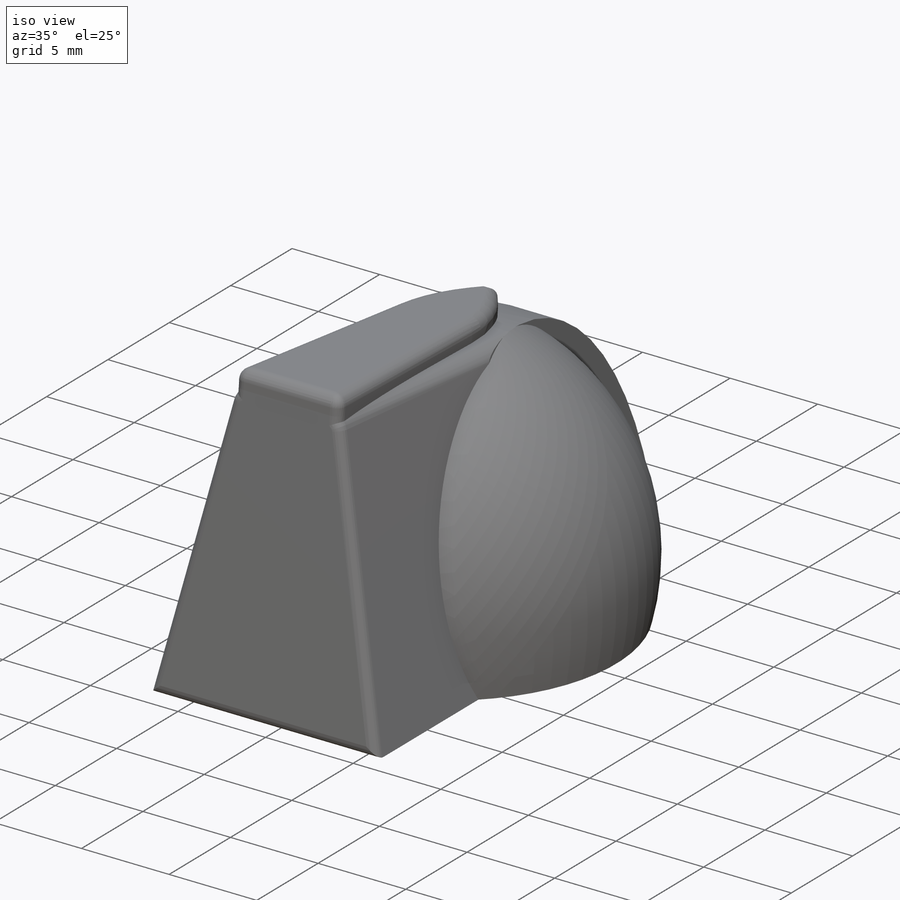
[diagram: iso view]
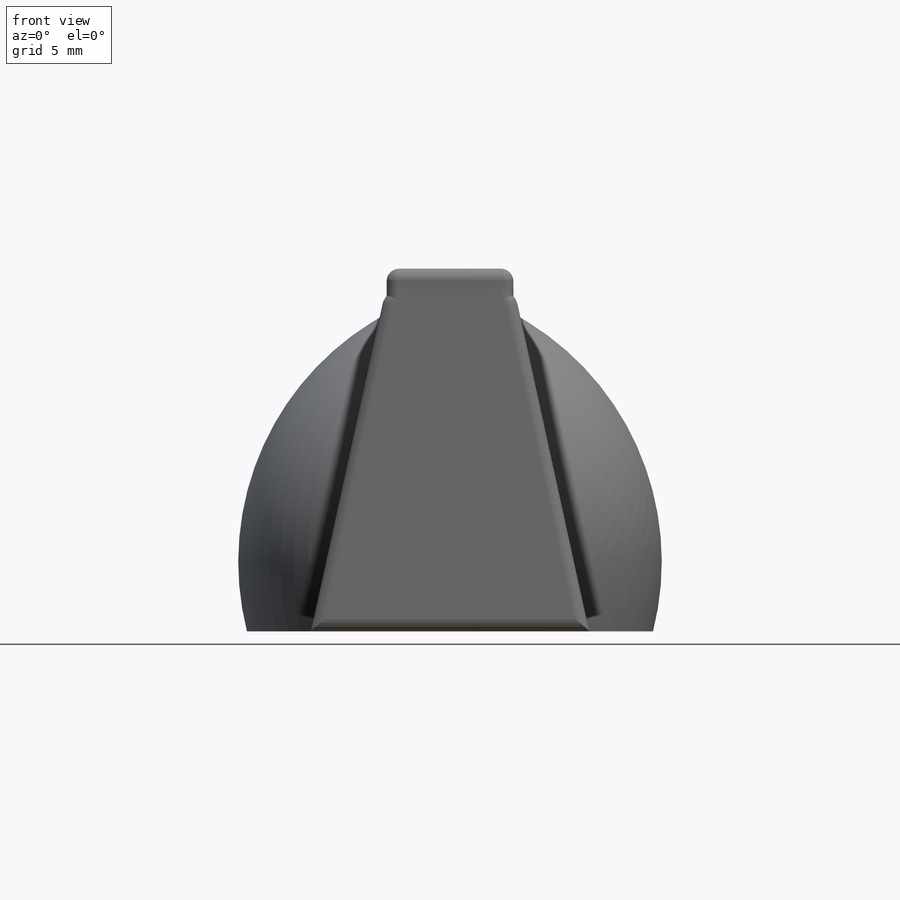
[diagram: front view]
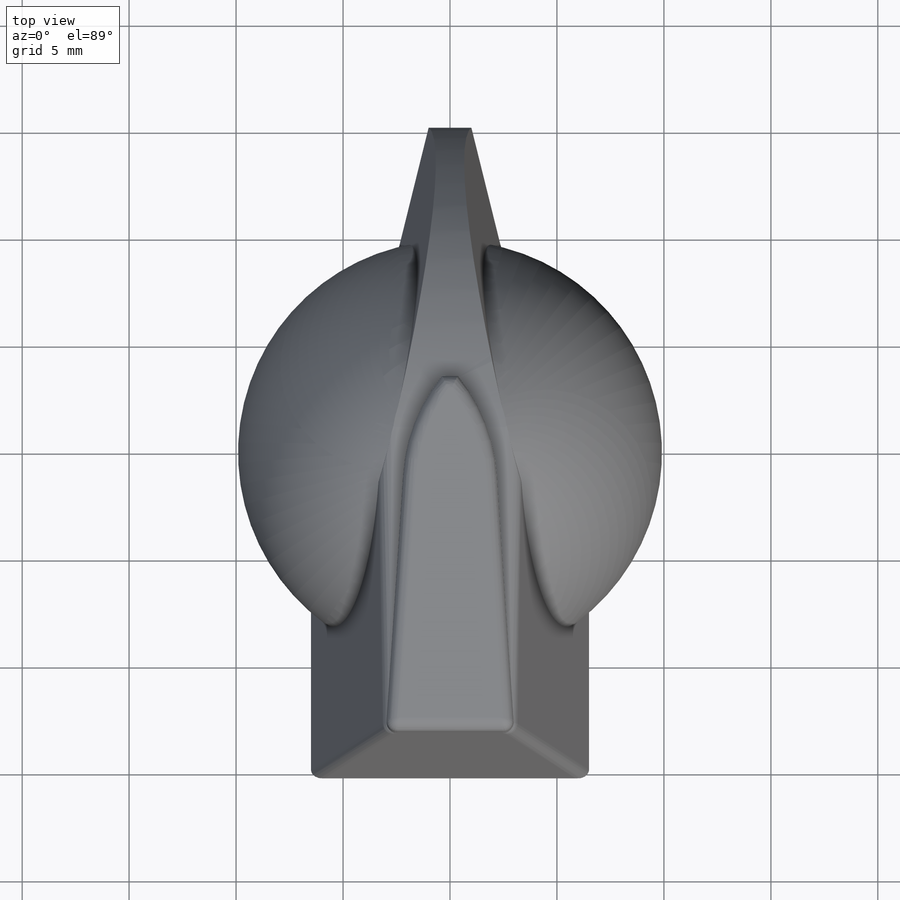
[diagram: top view]
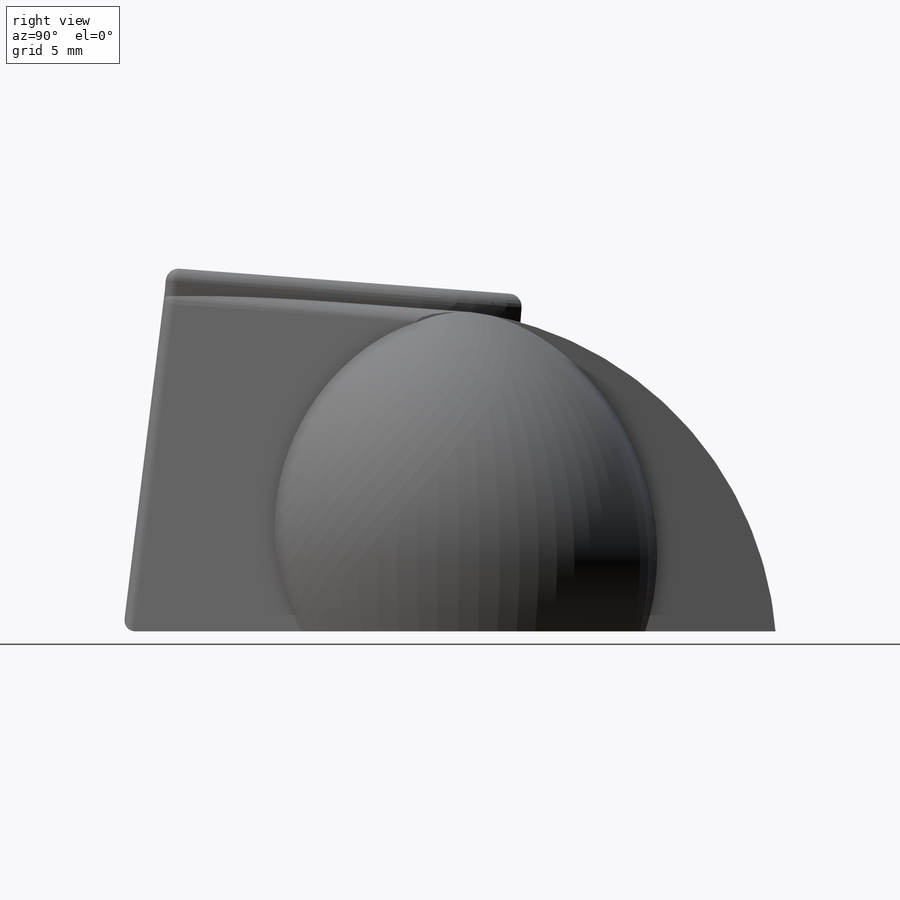
[diagram: right view]
SOLIDWORKS PART (.sldprt)
format: sldprt  version: not decoded by parser v0  size: 354,816 bytes
history: native  units: mm
features: sketch x7, plane x3, cut_extrude x3, fillet x3, revolve x2, extrude x2, material x1 (+10 scaffold rows collapsed)
feature tree (31):
  scaffold x10  (default folders/planes/origin — collapsed)
  material  "Material <not specified>"
  plane  "Plano frontal"
  plane  "Plano superior"
  plane  "Plano direito"
  sketch  "Esboço1"  dims[c1.D1=19.0mm c1.D2=~9.303897mm c2.D1=16.0mm]
  revolve  "Revolução2"  Angle=360deg
  sketch  "Esboço2"  dims[D1=13.0mm D2=30.5mm D3=15.25mm D4=2.0mm D5=6.5mm]
  extrude  "Ressalto-extrusão1"  Depth=16mm
  sketch  "Esboço4"
  sketch  "Esboço6"  dims[c1.D1=~4.333333mm c1.D2=2.165mm c2.D1=6.0mm c2.D2=3.0mm]
  cut_extrude  "Corte-extrusão6"  Depth=20mm
  sketch  "Esboço8"
  revolve  "Revolução4"  Angle=360deg
  cut_extrude  "Corte-extrusão7"  Depth=15mm
  sketch  "Esboço10"
  extrude  "Ressalto-extrusão3"  Depth=1mm
  fillet  "Filete11"  Radius=0.85mm
  fillet  "Filete12"  Radius=0.6mm
  fillet  "Filete18"  Radius=0.5mm
  sketch  "Esboço11"  dims[D1=6.0mm]
  cut_extrude  "Corte-extrusão8"  Depth=10mm
decode coverage: 14 of 17 modeling features carry decoded parameters
note: ~ marks probable driven/reference dimensions
note: suppression state not decoded; provenance and decode notes live in map.json
